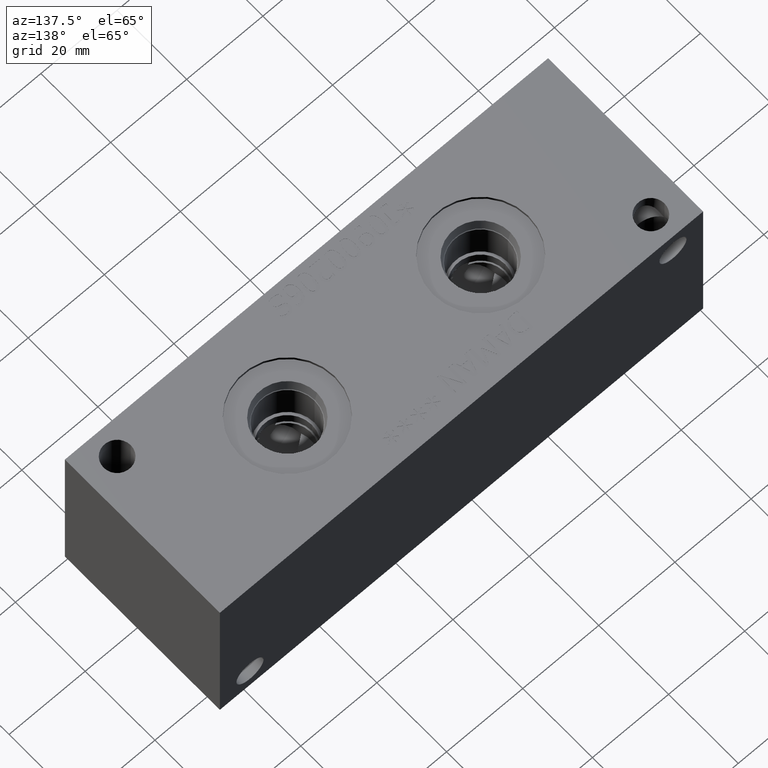
[diagram: clean part render]
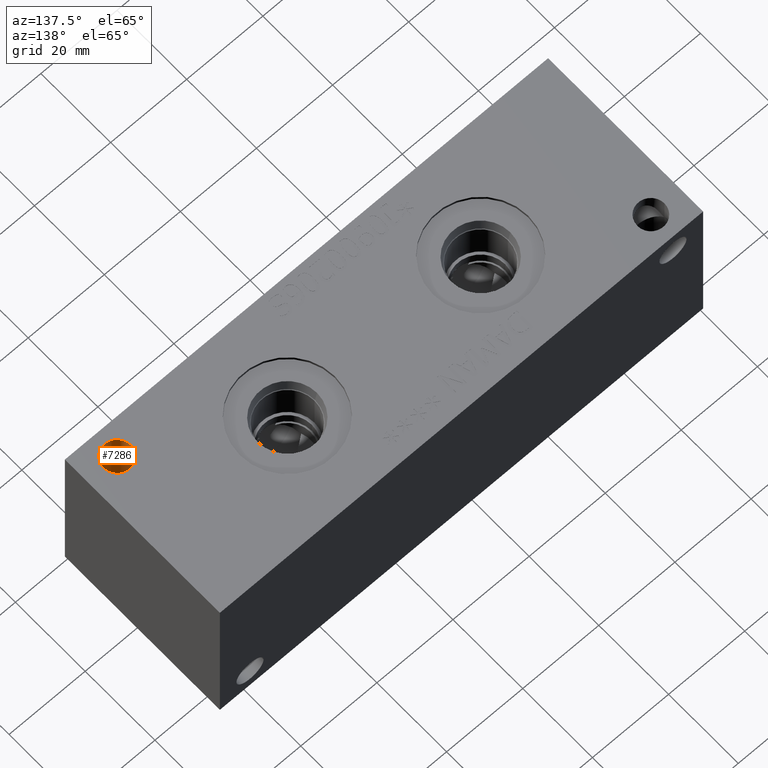
[diagram: same view with one face highlighted and labeled with its STEP entity id]
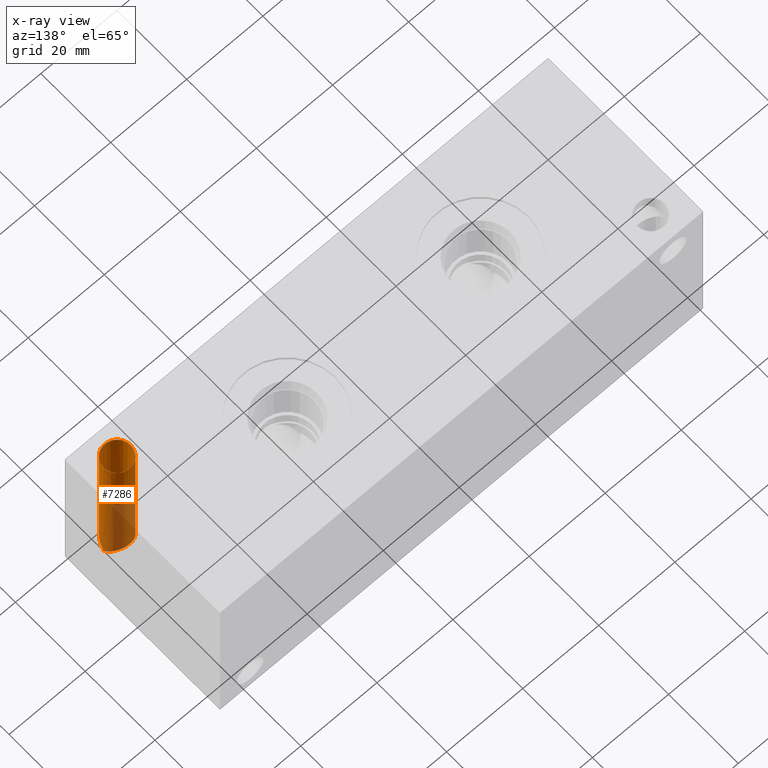
[diagram: x-ray of the same camera — body ghosted, the highlighted face saturated]
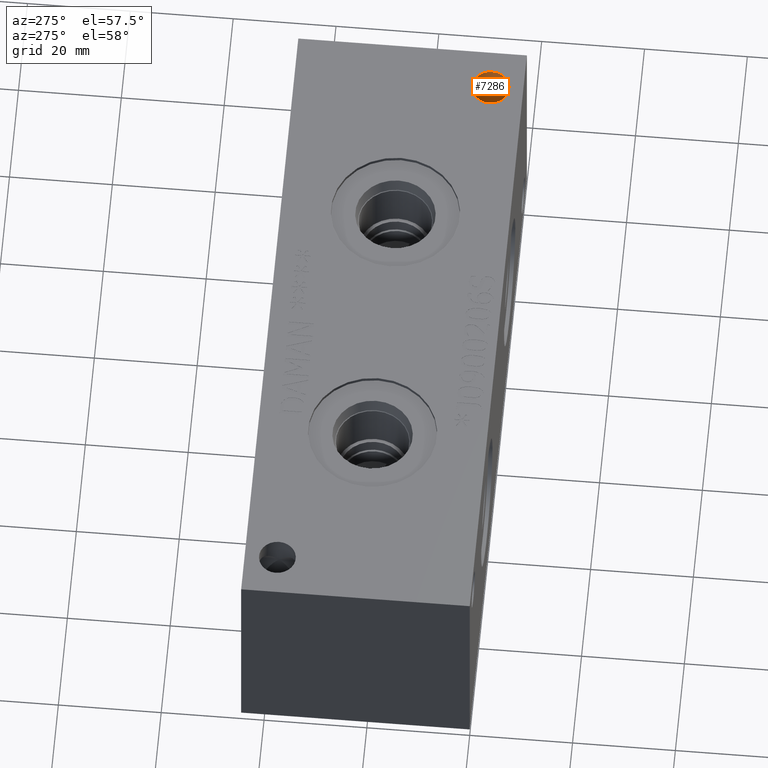
[diagram: same view with one face highlighted and labeled with its STEP entity id]
A machine part, auxiliary view. The second image highlights one B-rep face of the part: STEP entity #7286.
The next image is the same camera in x-ray: the body ghosted, the highlighted face saturated — about 38% of this face is hidden behind the body in this view.
A second angle (auxiliary view) of the same face is appended — the face is thin or edge-on in the first view.
In plain terms, the highlighted cylindrical surface (bore or boss wall) has radius 3.5687 mm, axis along (0, 0, 1).
Its self-contained STEP definition (entity closure, byte-faithful):
#21=ELLIPSE('',#7597,5.04690394004086,3.5687);
#24=ELLIPSE('',#7601,5.04690394004086,3.5687);
#56=CYLINDRICAL_SURFACE('',#7604,3.5687);
#73=CIRCLE('',#7386,3.5687);
#74=CIRCLE('',#7387,3.5687);
#934=FACE_OUTER_BOUND('',#1343,.T.);
#1343=EDGE_LOOP('',(#6253,#6254,#6255,#6256,#6257,#6258));
#2021=LINE('',#12601,#2677);
#2677=VECTOR('',#8854,3.5687);
#3022=VERTEX_POINT('',#11527);
#3023=VERTEX_POINT('',#11528);
#3328=VERTEX_POINT('',#12587);
#3329=VERTEX_POINT('',#12589);
#3857=EDGE_CURVE('',#3022,#3023,#73,.T.);
#3858=EDGE_CURVE('',#3023,#3022,#74,.T.);
#4315=EDGE_CURVE('',#3329,#3328,#21,.T.);
#4318=EDGE_CURVE('',#3328,#3329,#24,.T.);
#4322=EDGE_CURVE('',#3023,#3328,#2021,.T.);
#6253=ORIENTED_EDGE('',*,*,#3857,.F.);
#6254=ORIENTED_EDGE('',*,*,#3858,.F.);
#6255=ORIENTED_EDGE('',*,*,#4322,.T.);
#6256=ORIENTED_EDGE('',*,*,#4318,.T.);
#6257=ORIENTED_EDGE('',*,*,#4315,.T.);
#6258=ORIENTED_EDGE('',*,*,#4322,.F.);
#7286=ADVANCED_FACE('',(#934),#56,.F.);
#7386=AXIS2_PLACEMENT_3D('',#11529,#8024,#8025);
#7387=AXIS2_PLACEMENT_3D('',#11530,#8026,#8027);
#7597=AXIS2_PLACEMENT_3D('',#12590,#8836,#8837);
#7601=AXIS2_PLACEMENT_3D('',#12594,#8844,#8845);
#7604=AXIS2_PLACEMENT_3D('',#12600,#8852,#8853);
#8024=DIRECTION('center_axis',(0.,0.,-1.));
#8025=DIRECTION('ref_axis',(1.,0.,0.));
#8026=DIRECTION('center_axis',(0.,0.,-1.));
#8027=DIRECTION('ref_axis',(1.,0.,0.));
#8836=DIRECTION('center_axis',(0.,-0.707106781186548,-0.707106781186547));
#8837=DIRECTION('ref_axis',(0.,-0.707106781186547,0.707106781186548));
#8844=DIRECTION('center_axis',(0.,0.707106781186548,-0.707106781186547));
#8845=DIRECTION('ref_axis',(0.,0.707106781186547,0.707106781186548));
#8852=DIRECTION('center_axis',(0.,0.,1.));
#8853=DIRECTION('ref_axis',(1.,0.,0.));
#8854=DIRECTION('',(0.,0.,-1.));
#11527=CARTESIAN_POINT('',(122.6439,6.35,44.45));
#11528=CARTESIAN_POINT('',(115.5065,6.35,44.45));
#11529=CARTESIAN_POINT('Origin',(119.0752,6.35,44.45));
#11530=CARTESIAN_POINT('Origin',(119.0752,6.35,44.45));
#12587=CARTESIAN_POINT('',(115.5065,6.35,6.35));
#12589=CARTESIAN_POINT('',(122.6439,6.35,6.35));
#12590=CARTESIAN_POINT('Origin',(119.0752,6.35,6.35));
#12594=CARTESIAN_POINT('Origin',(119.0752,6.35,6.35));
#12600=CARTESIAN_POINT('Origin',(119.0752,6.35,-97.2560513880759));
#12601=CARTESIAN_POINT('',(115.5065,6.35,-97.2560513880759));